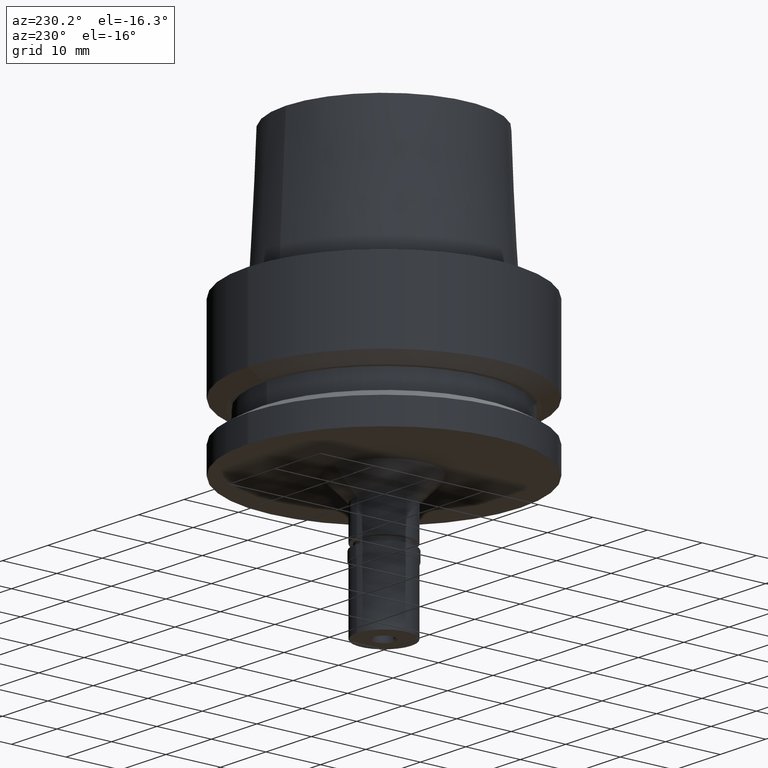
[diagram: clean part render]
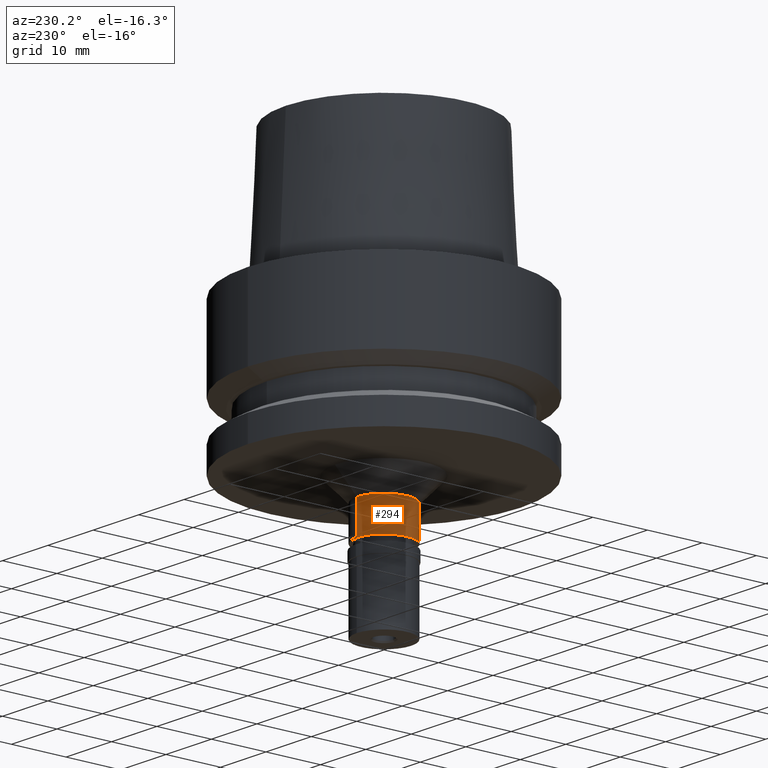
[diagram: same view with one face highlighted and labeled with its STEP entity id]
A machine part, auxiliary view. The second image highlights one B-rep face of the part: STEP entity #294.
In plain terms, the highlighted cylindrical surface (edge-blend (fillet) strip) has radius 5 mm, axis along (0, 0, 1).
Its self-contained STEP definition (entity closure, byte-faithful):
#91 = ORIENTED_EDGE ( 'NONE', *, *, #2025, .T. ) ;
#101 = AXIS2_PLACEMENT_3D ( 'NONE', #876, #2124, #892 ) ;
#192 = VECTOR ( 'NONE', #2649, 1000.000000000000000 ) ;
#197 = CARTESIAN_POINT ( 'NONE',  ( 0.0000000000000000000, -5.000000000000000000, -30.00000000000000000 ) ) ;
#210 = EDGE_CURVE ( 'NONE', #1783, #1072, #2236, .T. ) ;
#226 = CIRCLE ( 'NONE', #1412, 5.000000000000000000 ) ;
#273 = ORIENTED_EDGE ( 'NONE', *, *, #686, .T. ) ;
#294 = ADVANCED_FACE ( 'NONE', ( #350 ), #2260, .T. ) ;
#350 = FACE_OUTER_BOUND ( 'NONE', #991, .T. ) ;
#362 = CARTESIAN_POINT ( 'NONE',  ( 0.0000000000000000000, 0.0000000000000000000, -30.00000000000000000 ) ) ;
#596 = DIRECTION ( 'NONE',  ( 0.0000000000000000000, 0.0000000000000000000, 1.000000000000000000 ) ) ;
#686 = EDGE_CURVE ( 'NONE', #1783, #774, #226, .T. ) ;
#701 = CARTESIAN_POINT ( 'NONE',  ( 0.0000000000000000000, 5.000000000000000000, -36.00000000000000000 ) ) ;
#774 = VERTEX_POINT ( 'NONE', #2473 ) ;
#876 = CARTESIAN_POINT ( 'NONE',  ( 0.0000000000000000000, 0.0000000000000000000, -36.00000000000000000 ) ) ;
#892 = DIRECTION ( 'NONE',  ( 0.0000000000000000000, 1.000000000000000000, 0.0000000000000000000 ) ) ;
#907 = LINE ( 'NONE', #1847, #192 ) ;
#991 = EDGE_LOOP ( 'NONE', ( #91, #2594, #273, #1350 ) ) ;
#998 = DIRECTION ( 'NONE',  ( 0.0000000000000000000, -1.000000000000000000, 0.0000000000000000000 ) ) ;
#1072 = VERTEX_POINT ( 'NONE', #2108 ) ;
#1111 = VERTEX_POINT ( 'NONE', #701 ) ;
#1184 = AXIS2_PLACEMENT_3D ( 'NONE', #2468, #596, #1191 ) ;
#1191 = DIRECTION ( 'NONE',  ( 0.0000000000000000000, 1.000000000000000000, 0.0000000000000000000 ) ) ;
#1223 = DIRECTION ( 'NONE',  ( 0.0000000000000000000, 0.0000000000000000000, -1.000000000000000000 ) ) ;
#1274 = EDGE_CURVE ( 'NONE', #774, #1111, #907, .T. ) ;
#1338 = VECTOR ( 'NONE', #2219, 1000.000000000000000 ) ;
#1350 = ORIENTED_EDGE ( 'NONE', *, *, #1274, .T. ) ;
#1412 = AXIS2_PLACEMENT_3D ( 'NONE', #362, #1223, #998 ) ;
#1783 = VERTEX_POINT ( 'NONE', #1795 ) ;
#1795 = CARTESIAN_POINT ( 'NONE',  ( 0.0000000000000000000, -5.000000000000000000, -30.00000000000000000 ) ) ;
#1847 = CARTESIAN_POINT ( 'NONE',  ( 0.0000000000000000000, 5.000000000000000000, -30.00000000000000000 ) ) ;
#2025 = EDGE_CURVE ( 'NONE', #1111, #1072, #2447, .T. ) ;
#2108 = CARTESIAN_POINT ( 'NONE',  ( 0.0000000000000000000, -5.000000000000000000, -36.00000000000000000 ) ) ;
#2124 = DIRECTION ( 'NONE',  ( 0.0000000000000000000, 0.0000000000000000000, 1.000000000000000000 ) ) ;
#2219 = DIRECTION ( 'NONE',  ( 0.0000000000000000000, 0.0000000000000000000, -1.000000000000000000 ) ) ;
#2236 = LINE ( 'NONE', #197, #1338 ) ;
#2260 = CYLINDRICAL_SURFACE ( 'NONE', #1184, 5.000000000000000000 ) ;
#2447 = CIRCLE ( 'NONE', #101, 5.000000000000000000 ) ;
#2468 = CARTESIAN_POINT ( 'NONE',  ( 0.0000000000000000000, 0.0000000000000000000, -49.86500000000000199 ) ) ;
#2473 = CARTESIAN_POINT ( 'NONE',  ( 0.0000000000000000000, 5.000000000000000000, -30.00000000000000000 ) ) ;
#2594 = ORIENTED_EDGE ( 'NONE', *, *, #210, .F. ) ;
#2649 = DIRECTION ( 'NONE',  ( 0.0000000000000000000, 0.0000000000000000000, -1.000000000000000000 ) ) ;